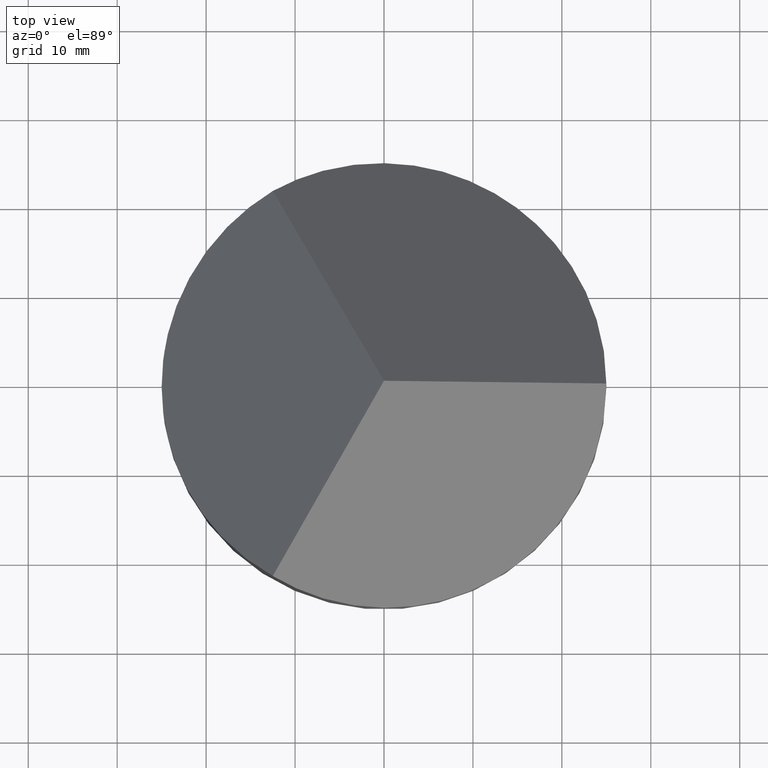
[diagram: clean part render]
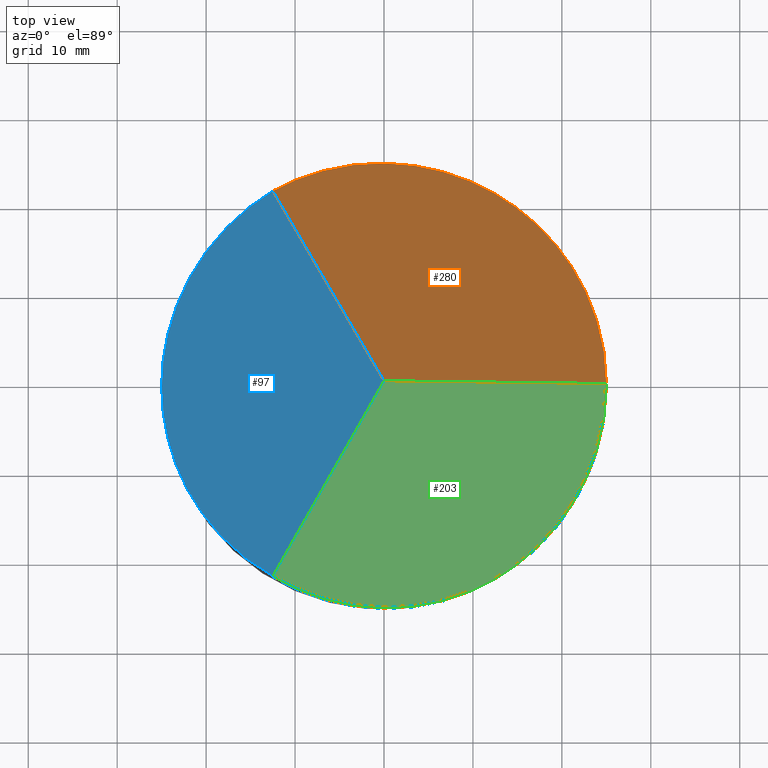
[diagram: same view with three faces highlighted in distinct colors, each labeled with its STEP entity id]
A machine part, top view with three faces highlighted in distinct colors.
Their STEP definitions:

[orange] entity #280 — the highlighted planar face has unit normal (0.4082, 0.7071, 0.5774).
#12 = ORIENTED_EDGE ( 'NONE', *, *, #229, .T. ) ;
#20 = DIRECTION ( 'NONE',  ( 0.0000000000000000000, -0.6325343505460011600, 0.7745323075116675700 ) ) ;
#36 = FACE_OUTER_BOUND ( 'NONE', #162, .T. ) ;
#47 = CARTESIAN_POINT ( 'NONE',  ( 0.0000000000000000000, -5.798745577028398700E-015, 42.00000000000000700 ) ) ;
#51 = VECTOR ( 'NONE', #184, 1000.000000000000200 ) ;
#100 = EDGE_CURVE ( 'NONE', #221, #247, #232, .T. ) ;
#105 = EDGE_CURVE ( 'NONE', #221, #278, #186, .T. ) ;
#110 = CARTESIAN_POINT ( 'NONE',  ( 35.80067308283097600, -3.469446951953614200E-015, 16.69035888678597600 ) ) ;
#119 = CARTESIAN_POINT ( 'NONE',  ( 25.00000000000001400, -4.874894994984150700E-015, 24.32600190598661900 ) ) ;
#141 = LINE ( 'NONE', #223, #219 ) ;
#162 = EDGE_LOOP ( 'NONE', ( #257, #235, #12 ) ) ;
#184 = DIRECTION ( 'NONE',  ( -0.8165531063768112200, -1.062547636232122500E-016, 0.5772703218305786900 ) ) ;
#186 = LINE ( 'NONE', #110, #51 ) ;
#196 = PLANE ( 'NONE',  #220 ) ;
#218 = CARTESIAN_POINT ( 'NONE',  ( -12.50000000000003000, 21.65063509461094800, 24.32600190598650900 ) ) ;
#219 = VECTOR ( 'NONE', #273, 1000.000000000000100 ) ;
#220 = AXIS2_PLACEMENT_3D ( 'NONE', #243, #290, #20 ) ;
#221 = VERTEX_POINT ( 'NONE', #119 ) ;
#223 = CARTESIAN_POINT ( 'NONE',  ( 11.40424666751465900, -19.75273465018337800, 58.12469070922506400 ) ) ;
#229 = EDGE_CURVE ( 'NONE', #247, #278, #141, .T. ) ;
#232 =( BOUNDED_CURVE ( )  B_SPLINE_CURVE ( 3, ( #266, #285, #305, #287 ),
 .UNSPECIFIED., .F., .F. ) 
 B_SPLINE_CURVE_WITH_KNOTS ( ( 4, 4 ),
 ( 5.235987755982985300, 7.330382858376182800 ),
 .UNSPECIFIED. ) 
 CURVE ( )  GEOMETRIC_REPRESENTATION_ITEM ( )  RATIONAL_B_SPLINE_CURVE ( ( 1.000000000000000000, 0.6666666666666660700, 0.6666666666666660700, 1.000000000000000000 ) ) 
 REPRESENTATION_ITEM ( '' )  );
#235 = ORIENTED_EDGE ( 'NONE', *, *, #100, .T. ) ;
#243 = CARTESIAN_POINT ( 'NONE',  ( 53.69357503463527300, -30.99999999999985400, 42.00000000000000000 ) ) ;
#247 = VERTEX_POINT ( 'NONE', #218 ) ;
#257 = ORIENTED_EDGE ( 'NONE', *, *, #105, .F. ) ;
#266 = CARTESIAN_POINT ( 'NONE',  ( 25.00000000000001400, -4.874894994984150700E-015, 24.32600190598661900 ) ) ;
#273 = DIRECTION ( 'NONE',  ( 0.4082765531884057800, -0.7071557336614134900, 0.5772703218305811300 ) ) ;
#278 = VERTEX_POINT ( 'NONE', #47 ) ;
#280 = ADVANCED_FACE ( 'NONE', ( #36 ), #196, .T. ) ;
#285 = CARTESIAN_POINT ( 'NONE',  ( 25.00000000000001800, 21.65063509461097600, -2.184995235033643900 ) ) ;
#287 = CARTESIAN_POINT ( 'NONE',  ( -12.50000000000003000, 21.65063509461094800, 24.32600190598650900 ) ) ;
#290 = DIRECTION ( 'NONE',  ( 0.4082200218682778300, 0.7070578185427396400, 0.5774302165486711000 ) ) ;
#305 = CARTESIAN_POINT ( 'NONE',  ( 6.249999999999983100, 32.47595264191647900, -2.184995235033713200 ) ) ;

[blue] entity #97 — the highlighted planar face has unit normal (0.8164, 0, -0.5774).
#8 = VECTOR ( 'NONE', #190, 1000.000000000000100 ) ;
#17 = CARTESIAN_POINT ( 'NONE',  ( -12.50000000000003000, -21.65063509461096900, 24.32600190598651200 ) ) ;
#30 = VERTEX_POINT ( 'NONE', #17 ) ;
#38 = CARTESIAN_POINT ( 'NONE',  ( -25.00000000000000700, -9.150635094610953100, 6.652003811973096400 ) ) ;
#47 = CARTESIAN_POINT ( 'NONE',  ( 0.0000000000000000000, -5.798745577028398700E-015, 42.00000000000000700 ) ) ;
#52 = ORIENTED_EDGE ( 'NONE', *, *, #173, .F. ) ;
#58 = VERTEX_POINT ( 'NONE', #132 ) ;
#64 = CARTESIAN_POINT ( 'NONE',  ( -12.50000000000003000, 21.65063509461094800, 24.32600190598650900 ) ) ;
#69 = CARTESIAN_POINT ( 'NONE',  ( -20.42468245269453300, 17.07531754730545600, 13.12113610081974900 ) ) ;
#82 = ORIENTED_EDGE ( 'NONE', *, *, #152, .F. ) ;
#83 = CARTESIAN_POINT ( 'NONE',  ( -12.50000000000003000, -21.65063509461096900, 24.32600190598651200 ) ) ;
#85 = DIRECTION ( 'NONE',  ( -0.5774302165486712200, 0.0000000000000000000, -0.8164400437365591000 ) ) ;
#97 = ADVANCED_FACE ( 'NONE', ( #167 ), #156, .F. ) ;
#98 = ORIENTED_EDGE ( 'NONE', *, *, #229, .F. ) ;
#112 = CARTESIAN_POINT ( 'NONE',  ( -25.00000000000000400, 9.150635094610953100, 6.652003811973095500 ) ) ;
#132 = CARTESIAN_POINT ( 'NONE',  ( -25.00000000000000000, 0.0000000000000000000, 6.652003811973103500 ) ) ;
#141 = LINE ( 'NONE', #223, #219 ) ;
#152 = EDGE_CURVE ( 'NONE', #30, #58, #294, .T. ) ;
#156 = PLANE ( 'NONE',  #172 ) ;
#163 = CARTESIAN_POINT ( 'NONE',  ( -11.40424666751465600, -19.75273465018339500, 25.87530929077494000 ) ) ;
#167 = FACE_OUTER_BOUND ( 'NONE', #297, .T. ) ;
#172 = AXIS2_PLACEMENT_3D ( 'NONE', #215, #217, #85 ) ;
#173 = EDGE_CURVE ( 'NONE', #58, #247, #192, .T. ) ;
#185 = CARTESIAN_POINT ( 'NONE',  ( -20.42468245269452600, -17.07531754730547000, 13.12113610081976100 ) ) ;
#188 = CARTESIAN_POINT ( 'NONE',  ( -25.00000000000000000, 0.0000000000000000000, 6.652003811973103500 ) ) ;
#190 = DIRECTION ( 'NONE',  ( 0.4082765531884056700, 0.7071557336614137100, 0.5772703218305809100 ) ) ;
#192 =( BOUNDED_CURVE ( )  B_SPLINE_CURVE ( 3, ( #239, #112, #69, #64 ),
 .UNSPECIFIED., .F., .T. ) 
 B_SPLINE_CURVE_WITH_KNOTS ( ( 4, 4 ),
 ( 0.0000000000000000000, 1.047197551196596300 ),
 .UNSPECIFIED. ) 
 CURVE ( )  GEOMETRIC_REPRESENTATION_ITEM ( )  RATIONAL_B_SPLINE_CURVE ( ( 1.000000000000000000, 0.9106836025229593200, 0.9106836025229593200, 1.000000000000000000 ) ) 
 REPRESENTATION_ITEM ( '' )  );
#215 = CARTESIAN_POINT ( 'NONE',  ( 0.0000000000000000000, -39.50000000000000000, 42.00000000000000000 ) ) ;
#217 = DIRECTION ( 'NONE',  ( 0.8164400437365592100, 0.0000000000000000000, -0.5774302165486713300 ) ) ;
#218 = CARTESIAN_POINT ( 'NONE',  ( -12.50000000000003000, 21.65063509461094800, 24.32600190598650900 ) ) ;
#219 = VECTOR ( 'NONE', #273, 1000.000000000000100 ) ;
#222 = ORIENTED_EDGE ( 'NONE', *, *, #301, .T. ) ;
#223 = CARTESIAN_POINT ( 'NONE',  ( 11.40424666751465900, -19.75273465018337800, 58.12469070922506400 ) ) ;
#229 = EDGE_CURVE ( 'NONE', #247, #278, #141, .T. ) ;
#239 = CARTESIAN_POINT ( 'NONE',  ( -25.00000000000000000, 0.0000000000000000000, 6.652003811973103500 ) ) ;
#247 = VERTEX_POINT ( 'NONE', #218 ) ;
#273 = DIRECTION ( 'NONE',  ( 0.4082765531884057800, -0.7071557336614134900, 0.5772703218305811300 ) ) ;
#278 = VERTEX_POINT ( 'NONE', #47 ) ;
#294 =( BOUNDED_CURVE ( )  B_SPLINE_CURVE ( 3, ( #83, #185, #38, #188 ),
 .UNSPECIFIED., .F., .F. ) 
 B_SPLINE_CURVE_WITH_KNOTS ( ( 4, 4 ),
 ( 5.235987755982989700, 6.283185307179586200 ),
 .UNSPECIFIED. ) 
 CURVE ( )  GEOMETRIC_REPRESENTATION_ITEM ( )  RATIONAL_B_SPLINE_CURVE ( ( 1.000000000000000000, 0.9106836025229592100, 0.9106836025229592100, 1.000000000000000000 ) ) 
 REPRESENTATION_ITEM ( '' )  );
#297 = EDGE_LOOP ( 'NONE', ( #82, #222, #98, #52 ) ) ;
#300 = LINE ( 'NONE', #163, #8 ) ;
#301 = EDGE_CURVE ( 'NONE', #30, #278, #300, .T. ) ;

[green] entity #203 — the highlighted planar face has unit normal (-0.4082, 0.7071, -0.5774).
#8 = VECTOR ( 'NONE', #190, 1000.000000000000100 ) ;
#9 = EDGE_LOOP ( 'NONE', ( #78, #199, #255 ) ) ;
#17 = CARTESIAN_POINT ( 'NONE',  ( -12.50000000000003000, -21.65063509461096900, 24.32600190598651200 ) ) ;
#18 = EDGE_CURVE ( 'NONE', #221, #30, #122, .T. ) ;
#30 = VERTEX_POINT ( 'NONE', #17 ) ;
#41 = DIRECTION ( 'NONE',  ( 0.0000000000000000000, 0.6325343505460014900, 0.7745323075116673500 ) ) ;
#47 = CARTESIAN_POINT ( 'NONE',  ( 0.0000000000000000000, -5.798745577028398700E-015, 42.00000000000000700 ) ) ;
#51 = VECTOR ( 'NONE', #184, 1000.000000000000200 ) ;
#78 = ORIENTED_EDGE ( 'NONE', *, *, #105, .T. ) ;
#86 = CARTESIAN_POINT ( 'NONE',  ( 6.249999999999992000, -32.47595264191646400, -2.184995235033657700 ) ) ;
#87 = FACE_OUTER_BOUND ( 'NONE', #9, .T. ) ;
#105 = EDGE_CURVE ( 'NONE', #221, #278, #186, .T. ) ;
#110 = CARTESIAN_POINT ( 'NONE',  ( 35.80067308283097600, -3.469446951953614200E-015, 16.69035888678597600 ) ) ;
#119 = CARTESIAN_POINT ( 'NONE',  ( 25.00000000000001400, -4.874894994984150700E-015, 24.32600190598661900 ) ) ;
#122 =( BOUNDED_CURVE ( )  B_SPLINE_CURVE ( 3, ( #130, #241, #86, #213 ),
 .UNSPECIFIED., .F., .T. ) 
 B_SPLINE_CURVE_WITH_KNOTS ( ( 4, 4 ),
 ( 5.235987755982986200, 7.330382858376182800 ),
 .UNSPECIFIED. ) 
 CURVE ( )  GEOMETRIC_REPRESENTATION_ITEM ( )  RATIONAL_B_SPLINE_CURVE ( ( 1.000000000000000000, 0.6666666666666663000, 0.6666666666666663000, 1.000000000000000000 ) ) 
 REPRESENTATION_ITEM ( '' )  );
#130 = CARTESIAN_POINT ( 'NONE',  ( 25.00000000000001400, -4.874894994984150700E-015, 24.32600190598661900 ) ) ;
#163 = CARTESIAN_POINT ( 'NONE',  ( -11.40424666751465600, -19.75273465018339500, 25.87530929077494000 ) ) ;
#184 = DIRECTION ( 'NONE',  ( -0.8165531063768112200, -1.062547636232122500E-016, 0.5772703218305786900 ) ) ;
#186 = LINE ( 'NONE', #110, #51 ) ;
#190 = DIRECTION ( 'NONE',  ( 0.4082765531884056700, 0.7071557336614137100, 0.5772703218305809100 ) ) ;
#199 = ORIENTED_EDGE ( 'NONE', *, *, #301, .F. ) ;
#203 = ADVANCED_FACE ( 'NONE', ( #87 ), #309, .F. ) ;
#213 = CARTESIAN_POINT ( 'NONE',  ( -12.50000000000003000, -21.65063509461096900, 24.32600190598651200 ) ) ;
#221 = VERTEX_POINT ( 'NONE', #119 ) ;
#241 = CARTESIAN_POINT ( 'NONE',  ( 25.00000000000001400, -21.65063509461098000, -2.184995235033602200 ) ) ;
#250 = DIRECTION ( 'NONE',  ( -0.4082200218682779900, 0.7070578185427393000, -0.5774302165486714400 ) ) ;
#255 = ORIENTED_EDGE ( 'NONE', *, *, #18, .F. ) ;
#260 = AXIS2_PLACEMENT_3D ( 'NONE', #269, #250, #41 ) ;
#269 = CARTESIAN_POINT ( 'NONE',  ( 46.33235910246752800, 26.74999999999989700, 42.00000000000000000 ) ) ;
#278 = VERTEX_POINT ( 'NONE', #47 ) ;
#300 = LINE ( 'NONE', #163, #8 ) ;
#301 = EDGE_CURVE ( 'NONE', #30, #278, #300, .T. ) ;
#309 = PLANE ( 'NONE',  #260 ) ;